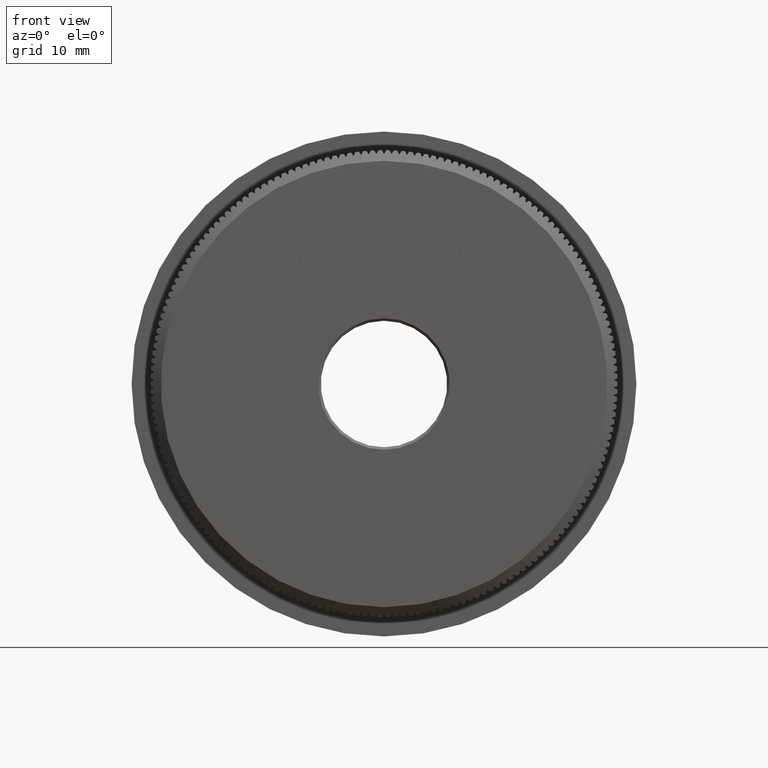
[diagram: clean part render]
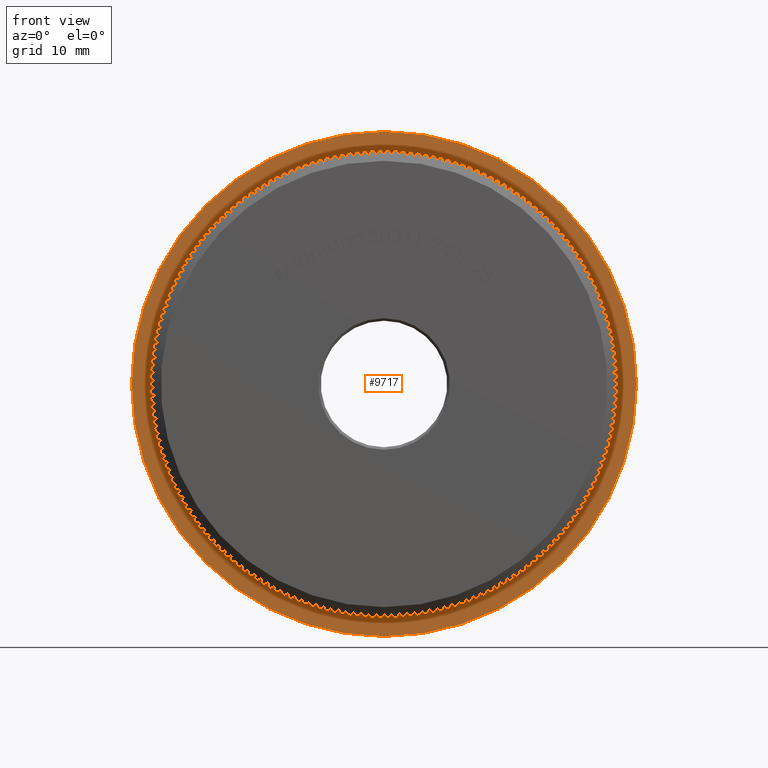
[diagram: same view with one face highlighted and labeled with its STEP entity id]
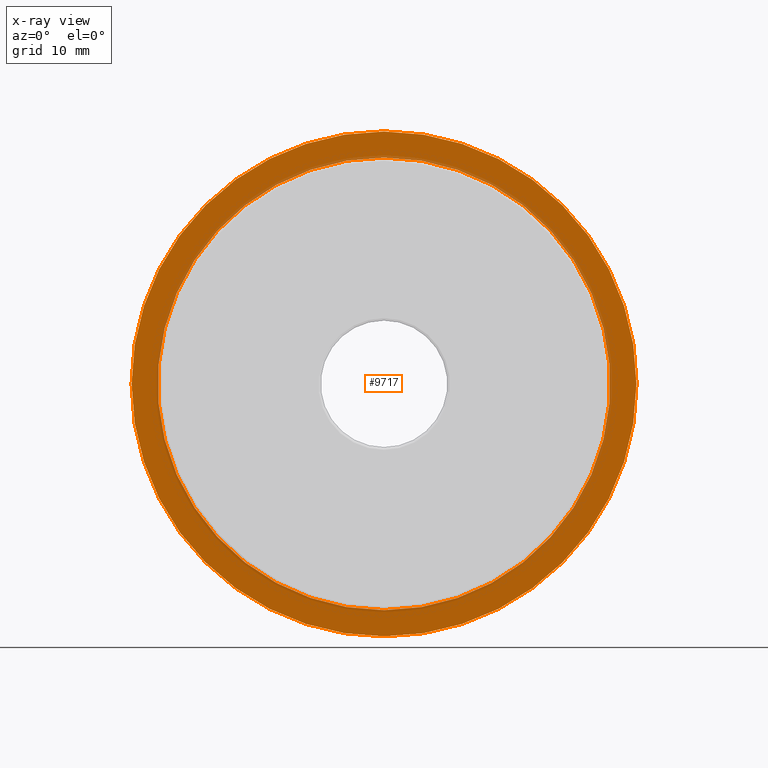
[diagram: x-ray of the same camera — body ghosted, the highlighted face saturated]
A machine part, front view. The second image highlights one B-rep face of the part: STEP entity #9717.
The next image is the same camera in x-ray: the body ghosted, the highlighted face saturated — about 8% of this face is hidden behind the body in this view.
In plain terms, the highlighted planar face has unit normal (0, -1, -0).
Its self-contained STEP definition (entity closure, byte-faithful):
#1092 = EDGE_CURVE ( 'NONE', #3805, #16836, #24298, .T. ) ;
#1793 = ORIENTED_EDGE ( 'NONE', *, *, #17905, .T. ) ;
#1860 = EDGE_LOOP ( 'NONE', ( #1793, #25107 ) ) ;
#1977 = CARTESIAN_POINT ( 'NONE',  ( 0.0000000000000000000, 8.000000000000000000, 0.0000000000000000000 ) ) ;
#3411 = EDGE_LOOP ( 'NONE', ( #20435, #23766 ) ) ;
#3805 = VERTEX_POINT ( 'NONE', #11558 ) ;
#4083 = DIRECTION ( 'NONE',  ( -0.0000000000000000000, -1.000000000000000000, -0.0000000000000000000 ) ) ;
#4649 = FACE_OUTER_BOUND ( 'NONE', #1860, .T. ) ;
#4978 = AXIS2_PLACEMENT_3D ( 'NONE', #7108, #4083, #20501 ) ;
#6842 = CARTESIAN_POINT ( 'NONE',  ( 0.0000000000000000000, 8.000000000000000000, -24.14999999999999900 ) ) ;
#6951 = AXIS2_PLACEMENT_3D ( 'NONE', #27437, #19540, #22362 ) ;
#7108 = CARTESIAN_POINT ( 'NONE',  ( 0.0000000000000000000, 8.000000000000000000, 0.0000000000000000000 ) ) ;
#7214 = DIRECTION ( 'NONE',  ( 0.0000000000000000000, 0.0000000000000000000, -1.000000000000000000 ) ) ;
#7357 = VERTEX_POINT ( 'NONE', #6842 ) ;
#8322 = DIRECTION ( 'NONE',  ( -0.0000000000000000000, -1.000000000000000000, -0.0000000000000000000 ) ) ;
#9156 = PLANE ( 'NONE',  #27892 ) ;
#9717 = ADVANCED_FACE ( 'NONE', ( #4649, #31711 ), #9156, .T. ) ;
#10296 = DIRECTION ( 'NONE',  ( 0.0000000000000000000, -1.000000000000000000, -0.0000000000000000000 ) ) ;
#10738 = CARTESIAN_POINT ( 'NONE',  ( 2.957522019940858300E-015, 8.000000000000000000, 24.14999999999999900 ) ) ;
#11558 = CARTESIAN_POINT ( 'NONE',  ( 2.694222958124177200E-015, 8.000000000000000000, 21.65000000000000200 ) ) ;
#12580 = CIRCLE ( 'NONE', #4978, 24.14999999999999900 ) ;
#12762 = DIRECTION ( 'NONE',  ( 0.0000000000000000000, 0.0000000000000000000, -1.000000000000000000 ) ) ;
#12832 = CIRCLE ( 'NONE', #6951, 24.14999999999999900 ) ;
#16836 = VERTEX_POINT ( 'NONE', #32317 ) ;
#17905 = EDGE_CURVE ( 'NONE', #7357, #30054, #12580, .T. ) ;
#19540 = DIRECTION ( 'NONE',  ( -0.0000000000000000000, -1.000000000000000000, -0.0000000000000000000 ) ) ;
#20435 = ORIENTED_EDGE ( 'NONE', *, *, #33502, .F. ) ;
#20501 = DIRECTION ( 'NONE',  ( 0.0000000000000000000, 0.0000000000000000000, -1.000000000000000000 ) ) ;
#22362 = DIRECTION ( 'NONE',  ( 0.0000000000000000000, 0.0000000000000000000, -1.000000000000000000 ) ) ;
#23766 = ORIENTED_EDGE ( 'NONE', *, *, #1092, .F. ) ;
#24298 = CIRCLE ( 'NONE', #24448, 21.65000000000000200 ) ;
#24448 = AXIS2_PLACEMENT_3D ( 'NONE', #1977, #28605, #7214 ) ;
#25107 = ORIENTED_EDGE ( 'NONE', *, *, #30250, .T. ) ;
#27233 = CIRCLE ( 'NONE', #32433, 21.65000000000000200 ) ;
#27437 = CARTESIAN_POINT ( 'NONE',  ( 0.0000000000000000000, 8.000000000000000000, 0.0000000000000000000 ) ) ;
#27892 = AXIS2_PLACEMENT_3D ( 'NONE', #30410, #10296, #12762 ) ;
#28605 = DIRECTION ( 'NONE',  ( -0.0000000000000000000, -1.000000000000000000, -0.0000000000000000000 ) ) ;
#29470 = DIRECTION ( 'NONE',  ( 0.0000000000000000000, 0.0000000000000000000, -1.000000000000000000 ) ) ;
#30054 = VERTEX_POINT ( 'NONE', #10738 ) ;
#30250 = EDGE_CURVE ( 'NONE', #30054, #7357, #12832, .T. ) ;
#30410 = CARTESIAN_POINT ( 'NONE',  ( 21.65000000000000200, 8.000000000000000000, 0.0000000000000000000 ) ) ;
#31711 = FACE_BOUND ( 'NONE', #3411, .T. ) ;
#32258 = CARTESIAN_POINT ( 'NONE',  ( 0.0000000000000000000, 8.000000000000000000, 0.0000000000000000000 ) ) ;
#32317 = CARTESIAN_POINT ( 'NONE',  ( 0.0000000000000000000, 8.000000000000000000, -21.65000000000000200 ) ) ;
#32433 = AXIS2_PLACEMENT_3D ( 'NONE', #32258, #8322, #29470 ) ;
#33502 = EDGE_CURVE ( 'NONE', #16836, #3805, #27233, .T. ) ;